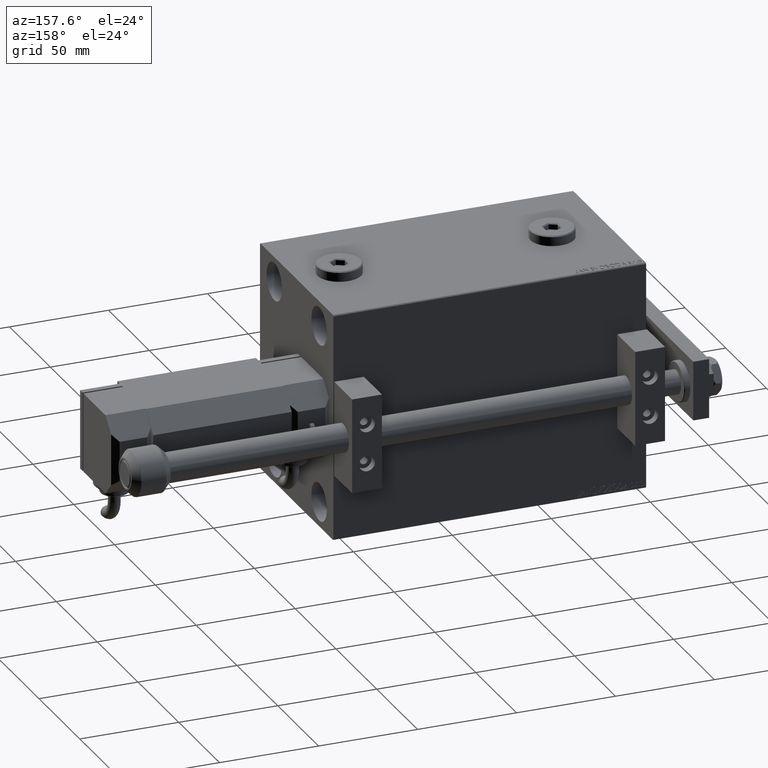
[diagram: clean part render]
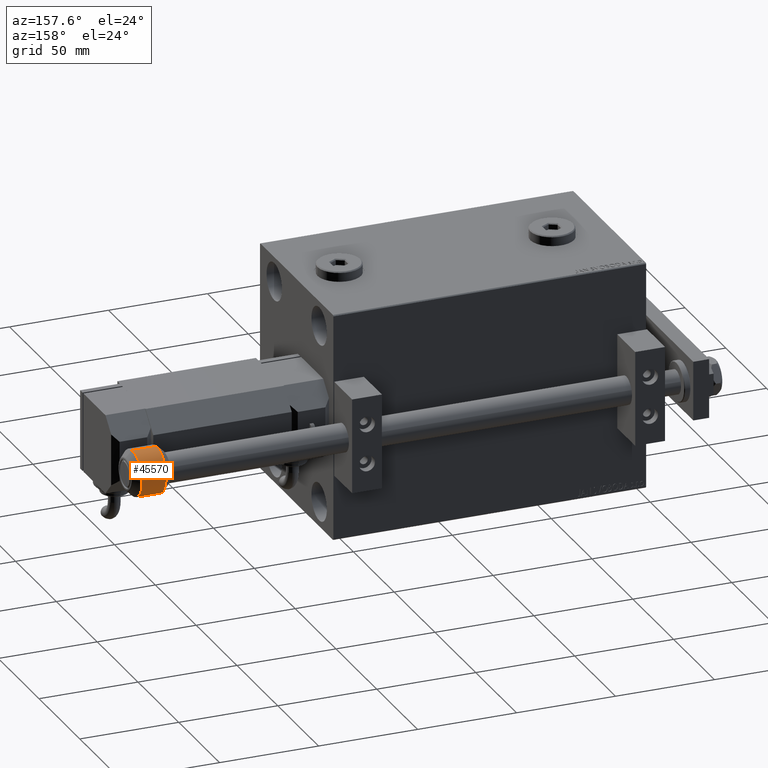
[diagram: same view with one face highlighted and labeled with its STEP entity id]
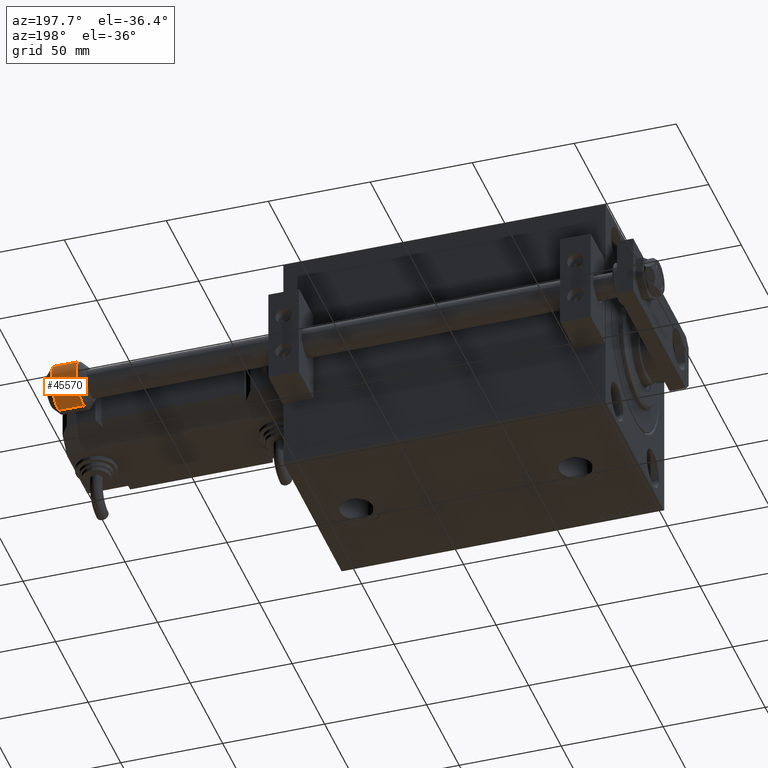
[diagram: same view with one face highlighted and labeled with its STEP entity id]
A machine part, auxiliary view. The second image highlights one B-rep face of the part: STEP entity #45570.
A second angle (auxiliary view) of the same face is appended — the face is thin or edge-on in the first view.
In plain terms, the highlighted cylindrical surface (edge-blend (fillet) strip) has radius 11.5 mm, axis along (1, 0, 0).
Its self-contained STEP definition (entity closure, byte-faithful):
#1426 = VERTEX_POINT ( 'NONE', #19079 ) ;
#1989 = VERTEX_POINT ( 'NONE', #10372 ) ;
#3660 = CARTESIAN_POINT ( 'NONE',  ( 0.000000000000000000, 0.000000000000000000, 16.08578643762689708 ) ) ;
#3919 = VERTEX_POINT ( 'NONE', #44066 ) ;
#4529 = CARTESIAN_POINT ( 'NONE',  ( 11.49999999999999822, 1.408343819019455979E-15, 20.00000000000000000 ) ) ;
#5503 = ORIENTED_EDGE ( 'NONE', *, *, #9835, .T. ) ;
#7121 = ORIENTED_EDGE ( 'NONE', *, *, #34273, .T. ) ;
#7719 = DIRECTION ( 'NONE',  ( -1.000000000000000000, 0.000000000000000000, 0.000000000000000000 ) ) ;
#8393 = LINE ( 'NONE', #4529, #13758 ) ;
#9599 = CIRCLE ( 'NONE', #29343, 11.49999999999999822 ) ;
#9835 = EDGE_CURVE ( 'NONE', #17421, #1426, #9599, .T. ) ;
#10372 = CARTESIAN_POINT ( 'NONE',  ( 11.49999999999999822, 1.408343819019455979E-15, 16.08578643762689708 ) ) ;
#12346 = CARTESIAN_POINT ( 'NONE',  ( 0.000000000000000000, 0.000000000000000000, 20.00000000000000000 ) ) ;
#12407 = EDGE_CURVE ( 'NONE', #1989, #1426, #8393, .T. ) ;
#13065 = CIRCLE ( 'NONE', #14712, 11.49999999999999822 ) ;
#13331 = DIRECTION ( 'NONE',  ( -0.000000000000000000, -0.000000000000000000, 1.000000000000000000 ) ) ;
#13758 = VECTOR ( 'NONE', #14040, 1000.000000000000000 ) ;
#14040 = DIRECTION ( 'NONE',  ( -0.000000000000000000, -0.000000000000000000, -1.000000000000000000 ) ) ;
#14712 = AXIS2_PLACEMENT_3D ( 'NONE', #3660, #38230, #27129 ) ;
#17421 = VERTEX_POINT ( 'NONE', #39703 ) ;
#19079 = CARTESIAN_POINT ( 'NONE',  ( 11.49999999999999822, 1.408343819019455979E-15, 3.914213562373095812 ) ) ;
#20096 = CYLINDRICAL_SURFACE ( 'NONE', #41913, 11.49999999999999822 ) ;
#20569 = DIRECTION ( 'NONE',  ( -1.000000000000000000, 0.000000000000000000, 0.000000000000000000 ) ) ;
#25866 = EDGE_LOOP ( 'NONE', ( #33472, #47367, #7121, #5503 ) ) ;
#27129 = DIRECTION ( 'NONE',  ( 1.000000000000000000, 0.000000000000000000, 0.000000000000000000 ) ) ;
#29343 = AXIS2_PLACEMENT_3D ( 'NONE', #36814, #13331, #20569 ) ;
#33472 = ORIENTED_EDGE ( 'NONE', *, *, #12407, .F. ) ;
#34273 = EDGE_CURVE ( 'NONE', #3919, #17421, #37873, .T. ) ;
#34507 = CARTESIAN_POINT ( 'NONE',  ( -11.49999999999999822, 0.000000000000000000, 20.00000000000000000 ) ) ;
#35322 = FACE_OUTER_BOUND ( 'NONE', #25866, .T. ) ;
#36814 = CARTESIAN_POINT ( 'NONE',  ( 0.000000000000000000, 0.000000000000000000, 3.914213562373095812 ) ) ;
#37873 = LINE ( 'NONE', #34507, #46595 ) ;
#38230 = DIRECTION ( 'NONE',  ( 0.000000000000000000, 0.000000000000000000, -1.000000000000000000 ) ) ;
#39703 = CARTESIAN_POINT ( 'NONE',  ( -11.49999999999999822, 0.000000000000000000, 3.914213562373095812 ) ) ;
#41913 = AXIS2_PLACEMENT_3D ( 'NONE', #12346, #43081, #7719 ) ;
#42268 = DIRECTION ( 'NONE',  ( -0.000000000000000000, -0.000000000000000000, -1.000000000000000000 ) ) ;
#43081 = DIRECTION ( 'NONE',  ( -0.000000000000000000, -0.000000000000000000, -1.000000000000000000 ) ) ;
#44066 = CARTESIAN_POINT ( 'NONE',  ( -11.49999999999999822, 0.000000000000000000, 16.08578643762689708 ) ) ;
#45570 = ADVANCED_FACE ( 'NONE', ( #35322 ), #20096, .T. ) ;
#45951 = EDGE_CURVE ( 'NONE', #1989, #3919, #13065, .T. ) ;
#46595 = VECTOR ( 'NONE', #42268, 1000.000000000000000 ) ;
#47367 = ORIENTED_EDGE ( 'NONE', *, *, #45951, .T. ) ;